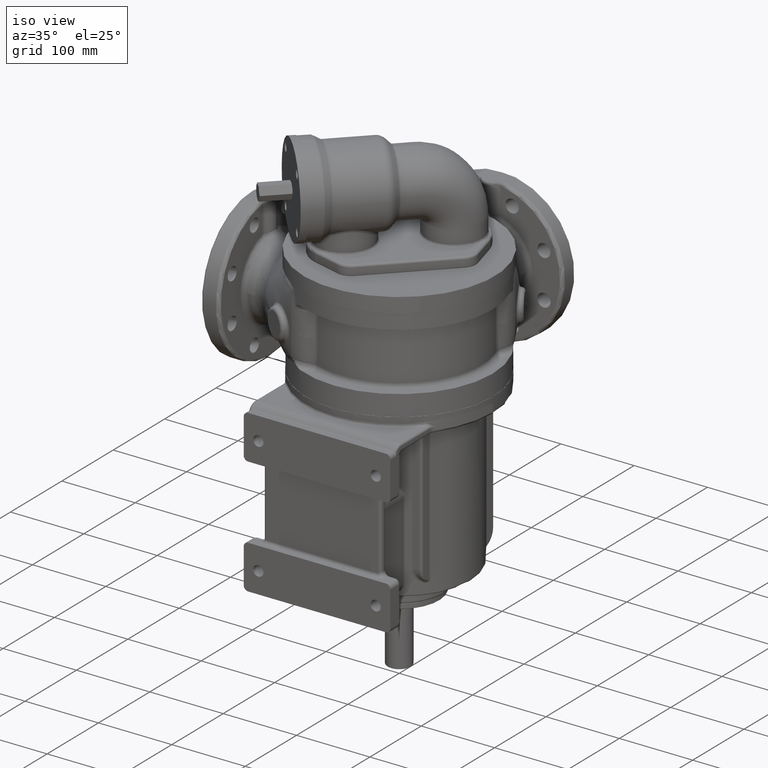
[diagram: clean part render]
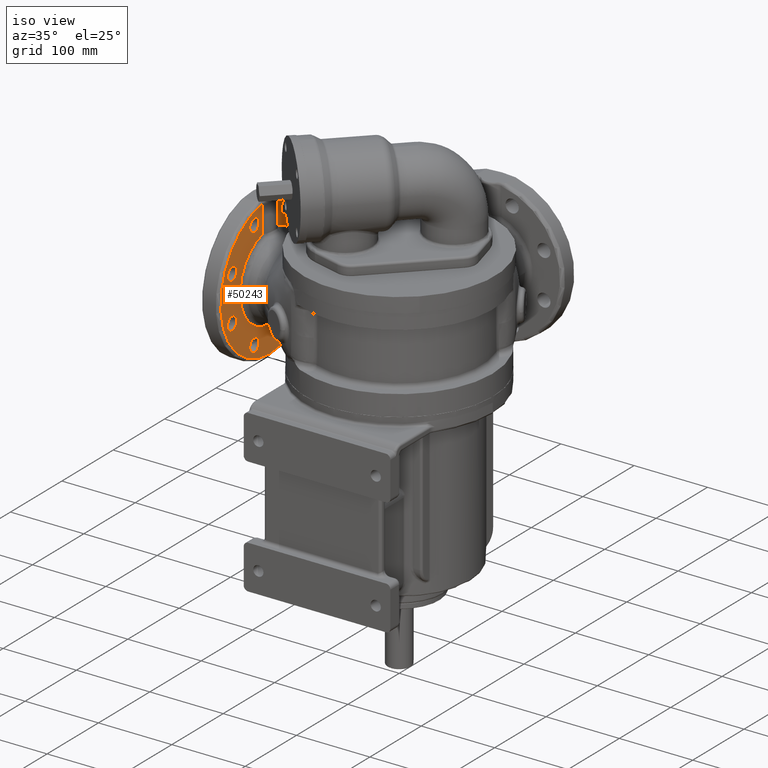
[diagram: same view with one face highlighted and labeled with its STEP entity id]
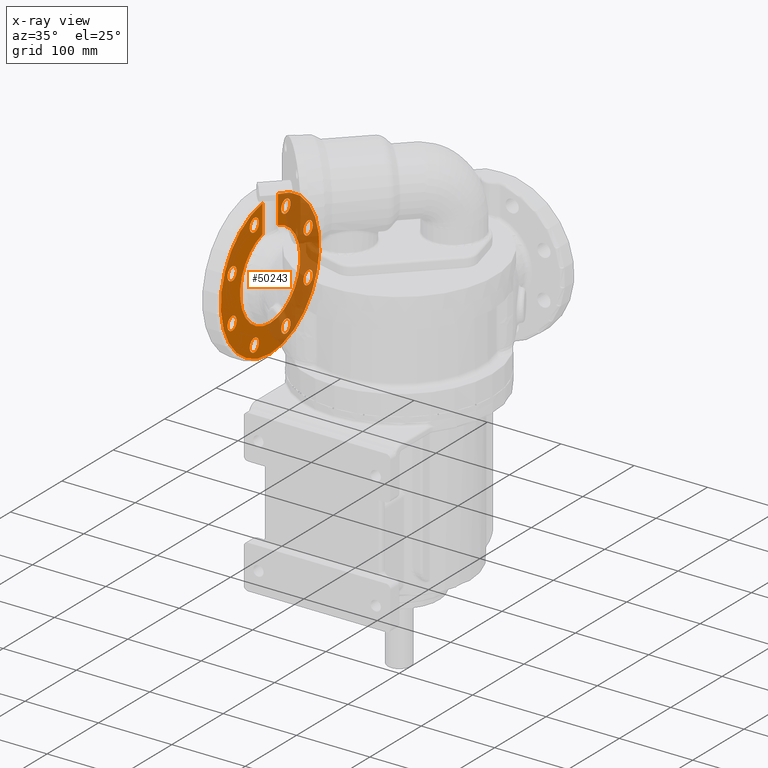
[diagram: x-ray of the same camera — body ghosted, the highlighted face saturated]
A machine part, iso view. The second image highlights one B-rep face of the part: STEP entity #50243.
The next image is the same camera in x-ray: the body ghosted, the highlighted face saturated — about 46% of this face is hidden behind the body in this view.
In plain terms, the highlighted planar face has unit normal (-1, 0, 0).
Its self-contained STEP definition (entity closure, byte-faithful):
#9846=CARTESIAN_POINT('',(-1.76E2,-8.831007501536E-14,7.6E1));
#9847=DIRECTION('',(-1.E0,0.E0,0.E0));
#9848=DIRECTION('',(0.E0,2.598065731885E-1,9.656606777373E-1));
#9849=AXIS2_PLACEMENT_3D('',#9846,#9847,#9848);
#9851=DIRECTION('',(0.E0,1.030152802968E-13,-1.E0));
#9852=VECTOR('',#9851,3.829809062250E1);
#9853=CARTESIAN_POINT('',(-1.76E2,-1.519868415357E1,1.707892398957E2));
#9854=LINE('',#9853,#9852);
#9855=DIRECTION('',(0.E0,1.030152805644E-13,1.E0));
#9856=VECTOR('',#9855,3.829809052299E1);
#9857=CARTESIAN_POINT('',(-1.76E2,1.519868415357E1,1.324911493727E2));
#9858=LINE('',#9857,#9856);
#9859=CARTESIAN_POINT('',(-1.76E2,-3.061467458921E1,2.089637399097E0));
#9860=DIRECTION('',(-1.E0,0.E0,0.E0));
#9861=DIRECTION('',(0.E0,1.E0,0.E0));
#9862=AXIS2_PLACEMENT_3D('',#9859,#9860,#9861);
#9864=CARTESIAN_POINT('',(-1.76E2,-3.061467458921E1,2.089637399097E0));
#9865=DIRECTION('',(-1.E0,0.E0,0.E0));
#9866=DIRECTION('',(0.E0,-1.E0,0.E0));
#9867=AXIS2_PLACEMENT_3D('',#9864,#9865,#9866);
#9869=CARTESIAN_POINT('',(-1.76E2,-7.391036260090E1,4.538532541079E1));
#9870=DIRECTION('',(-1.E0,0.E0,0.E0));
#9871=DIRECTION('',(0.E0,7.071067811866E-1,-7.071067811865E-1));
#9872=AXIS2_PLACEMENT_3D('',#9869,#9870,#9871);
#9874=CARTESIAN_POINT('',(-1.76E2,-7.391036260090E1,4.538532541079E1));
#9875=DIRECTION('',(-1.E0,0.E0,0.E0));
#9876=DIRECTION('',(0.E0,-7.071067811866E-1,7.071067811865E-1));
#9877=AXIS2_PLACEMENT_3D('',#9874,#9875,#9876);
#9879=CARTESIAN_POINT('',(-1.76E2,-7.391036260090E1,1.066146745892E2));
#9880=DIRECTION('',(-1.E0,0.E0,0.E0));
#9881=DIRECTION('',(0.E0,0.E0,-1.E0));
#9882=AXIS2_PLACEMENT_3D('',#9879,#9880,#9881);
#9884=CARTESIAN_POINT('',(-1.76E2,-7.391036260090E1,1.066146745892E2));
#9885=DIRECTION('',(-1.E0,0.E0,0.E0));
#9886=DIRECTION('',(0.E0,0.E0,1.E0));
#9887=AXIS2_PLACEMENT_3D('',#9884,#9885,#9886);
#9889=CARTESIAN_POINT('',(-1.76E2,-3.061467458921E1,1.499103626009E2));
#9890=DIRECTION('',(-1.E0,0.E0,0.E0));
#9891=DIRECTION('',(0.E0,-7.071067811865E-1,-7.071067811866E-1));
#9892=AXIS2_PLACEMENT_3D('',#9889,#9890,#9891);
#9894=CARTESIAN_POINT('',(-1.76E2,-3.061467458921E1,1.499103626009E2));
#9895=DIRECTION('',(-1.E0,0.E0,0.E0));
#9896=DIRECTION('',(0.E0,7.071067811865E-1,7.071067811865E-1));
#9897=AXIS2_PLACEMENT_3D('',#9894,#9895,#9896);
#9899=CARTESIAN_POINT('',(-1.76E2,3.061467458921E1,1.499103626009E2));
#9900=DIRECTION('',(-1.E0,0.E0,0.E0));
#9901=DIRECTION('',(0.E0,-1.E0,0.E0));
#9902=AXIS2_PLACEMENT_3D('',#9899,#9900,#9901);
#9904=CARTESIAN_POINT('',(-1.76E2,3.061467458921E1,1.499103626009E2));
#9905=DIRECTION('',(-1.E0,0.E0,0.E0));
#9906=DIRECTION('',(0.E0,1.E0,0.E0));
#9907=AXIS2_PLACEMENT_3D('',#9904,#9905,#9906);
#9909=CARTESIAN_POINT('',(-1.76E2,7.391036260090E1,1.066146745892E2));
#9910=DIRECTION('',(-1.E0,0.E0,0.E0));
#9911=DIRECTION('',(0.E0,-7.071067811865E-1,7.071067811866E-1));
#9912=AXIS2_PLACEMENT_3D('',#9909,#9910,#9911);
#9914=CARTESIAN_POINT('',(-1.76E2,7.391036260090E1,1.066146745892E2));
#9915=DIRECTION('',(-1.E0,0.E0,0.E0));
#9916=DIRECTION('',(0.E0,7.071067811866E-1,-7.071067811865E-1));
#9917=AXIS2_PLACEMENT_3D('',#9914,#9915,#9916);
#9919=CARTESIAN_POINT('',(-1.76E2,7.391036260090E1,4.538532541079E1));
#9920=DIRECTION('',(-1.E0,0.E0,0.E0));
#9921=DIRECTION('',(0.E0,0.E0,1.E0));
#9922=AXIS2_PLACEMENT_3D('',#9919,#9920,#9921);
#9924=CARTESIAN_POINT('',(-1.76E2,7.391036260090E1,4.538532541079E1));
#9925=DIRECTION('',(-1.E0,0.E0,0.E0));
#9926=DIRECTION('',(0.E0,0.E0,-1.E0));
#9927=AXIS2_PLACEMENT_3D('',#9924,#9925,#9926);
#9929=CARTESIAN_POINT('',(-1.76E2,3.061467458921E1,2.089637399098E0));
#9930=DIRECTION('',(-1.E0,0.E0,0.E0));
#9931=DIRECTION('',(0.E0,7.071067811865E-1,7.071067811866E-1));
#9932=AXIS2_PLACEMENT_3D('',#9929,#9930,#9931);
#9934=CARTESIAN_POINT('',(-1.76E2,3.061467458921E1,2.089637399098E0));
#9935=DIRECTION('',(-1.E0,0.E0,0.E0));
#9936=DIRECTION('',(0.E0,-7.071067811865E-1,-7.071067811866E-1));
#9937=AXIS2_PLACEMENT_3D('',#9934,#9935,#9936);
#9975=CARTESIAN_POINT('',(-1.76E2,-8.831007501536E-14,7.6E1));
#9976=DIRECTION('',(1.E0,0.E0,0.E0));
#9977=DIRECTION('',(0.E0,-1.583196265997E-1,9.873879155800E-1));
#9978=AXIS2_PLACEMENT_3D('',#9975,#9976,#9977);
#10452=CARTESIAN_POINT('',(-1.76E2,1.519868415357E1,1.707892398957E2));
#10653=CARTESIAN_POINT('',(-1.76E2,-1.519868415357E1,1.707892398957E2));
#19638=CARTESIAN_POINT('',(-1.76E2,-2.161467458921E1,2.089637399097E0));
#19639=CARTESIAN_POINT('',(-1.76E2,-3.961467458921E1,2.089637399097E0));
#19640=VERTEX_POINT('',#19638);
#19641=VERTEX_POINT('',#19639);
#19646=CARTESIAN_POINT('',(-1.76E2,-6.754640157022E1,3.902136438011E1));
#19647=CARTESIAN_POINT('',(-1.76E2,-8.027432363158E1,5.174928644147E1));
#19648=VERTEX_POINT('',#19646);
#19649=VERTEX_POINT('',#19647);
#19654=CARTESIAN_POINT('',(-1.76E2,-7.391036260090E1,9.761467458921E1));
#19655=CARTESIAN_POINT('',(-1.76E2,-7.391036260090E1,1.156146745892E2));
#19656=VERTEX_POINT('',#19654);
#19657=VERTEX_POINT('',#19655);
#19662=CARTESIAN_POINT('',(-1.76E2,-3.697863561989E1,1.435464015702E2));
#19663=CARTESIAN_POINT('',(-1.76E2,-2.425071355853E1,1.562743236316E2));
#19664=VERTEX_POINT('',#19662);
#19665=VERTEX_POINT('',#19663);
#19670=CARTESIAN_POINT('',(-1.76E2,2.161467458921E1,1.499103626009E2));
#19671=CARTESIAN_POINT('',(-1.76E2,3.961467458921E1,1.499103626009E2));
#19672=VERTEX_POINT('',#19670);
#19673=VERTEX_POINT('',#19671);
#19682=CARTESIAN_POINT('',(-1.76E2,6.754640157022E1,1.129786356199E2));
#19683=VERTEX_POINT('',#19682);
#19684=CARTESIAN_POINT('',(-1.76E2,8.027432363158E1,1.002507135585E2));
#19685=VERTEX_POINT('',#19684);
#19686=CARTESIAN_POINT('',(-1.76E2,7.391036260090E1,5.438532541079E1));
#19687=CARTESIAN_POINT('',(-1.76E2,7.391036260090E1,3.638532541079E1));
#19688=VERTEX_POINT('',#19686);
#19689=VERTEX_POINT('',#19687);
#19694=CARTESIAN_POINT('',(-1.76E2,3.697863561989E1,8.453598429777E0));
#19695=CARTESIAN_POINT('',(-1.76E2,2.425071355853E1,-4.274323631581E0));
#19696=VERTEX_POINT('',#19694);
#19697=VERTEX_POINT('',#19695);
#20062=CARTESIAN_POINT('',(-1.76E2,1.519868415357E1,1.324911497493E2));
#20063=VERTEX_POINT('',#20062);
#20064=CARTESIAN_POINT('',(-1.76E2,-1.519868415357E1,1.324911497493E2));
#20065=VERTEX_POINT('',#20064);
#20074=VERTEX_POINT('',#10452);
#20078=VERTEX_POINT('',#10653);
#50181=CARTESIAN_POINT('',(-1.76E2,-8.831007501536E-14,7.6E1));
#50182=DIRECTION('',(-1.E0,0.E0,0.E0));
#50183=DIRECTION('',(0.E0,0.E0,1.E0));
#50184=AXIS2_PLACEMENT_3D('',#50181,#50182,#50183);
#50185=PLANE('',#50184);
#50187=ORIENTED_EDGE('',*,*,#50186,.F.);
#50189=ORIENTED_EDGE('',*,*,#50188,.T.);
#50190=ORIENTED_EDGE('',*,*,#50169,.F.);
#50192=ORIENTED_EDGE('',*,*,#50191,.T.);
#50193=EDGE_LOOP('',(#50187,#50189,#50190,#50192));
#50194=FACE_OUTER_BOUND('',#50193,.F.);
#50196=ORIENTED_EDGE('',*,*,#50195,.F.);
#50198=ORIENTED_EDGE('',*,*,#50197,.F.);
#50199=EDGE_LOOP('',(#50196,#50198));
#50200=FACE_BOUND('',#50199,.F.);
#50202=ORIENTED_EDGE('',*,*,#50201,.F.);
#50204=ORIENTED_EDGE('',*,*,#50203,.F.);
#50205=EDGE_LOOP('',(#50202,#50204));
#50206=FACE_BOUND('',#50205,.F.);
#50208=ORIENTED_EDGE('',*,*,#50207,.F.);
#50210=ORIENTED_EDGE('',*,*,#50209,.F.);
#50211=EDGE_LOOP('',(#50208,#50210));
#50212=FACE_BOUND('',#50211,.F.);
#50214=ORIENTED_EDGE('',*,*,#50213,.F.);
#50216=ORIENTED_EDGE('',*,*,#50215,.F.);
#50217=EDGE_LOOP('',(#50214,#50216));
#50218=FACE_BOUND('',#50217,.F.);
#50220=ORIENTED_EDGE('',*,*,#50219,.F.);
#50222=ORIENTED_EDGE('',*,*,#50221,.F.);
#50223=EDGE_LOOP('',(#50220,#50222));
#50224=FACE_BOUND('',#50223,.F.);
#50226=ORIENTED_EDGE('',*,*,#50225,.F.);
#50228=ORIENTED_EDGE('',*,*,#50227,.F.);
#50229=EDGE_LOOP('',(#50226,#50228));
#50230=FACE_BOUND('',#50229,.F.);
#50232=ORIENTED_EDGE('',*,*,#50231,.F.);
#50234=ORIENTED_EDGE('',*,*,#50233,.F.);
#50235=EDGE_LOOP('',(#50232,#50234));
#50236=FACE_BOUND('',#50235,.F.);
#50238=ORIENTED_EDGE('',*,*,#50237,.F.);
#50240=ORIENTED_EDGE('',*,*,#50239,.F.);
#50241=EDGE_LOOP('',(#50238,#50240));
#50242=FACE_BOUND('',#50241,.F.);
#50243=ADVANCED_FACE('',(#50194,#50200,#50206,#50212,#50218,#50224,#50230,
#50236,#50242),#50185,.F.);
#9850=CIRCLE('',#9849,5.849999999995E1);
#9863=CIRCLE('',#9862,9.E0);
#9868=CIRCLE('',#9867,9.E0);
#9873=CIRCLE('',#9872,9.E0);
#9878=CIRCLE('',#9877,9.E0);
#9883=CIRCLE('',#9882,9.E0);
#9888=CIRCLE('',#9887,9.E0);
#9893=CIRCLE('',#9892,9.E0);
#9898=CIRCLE('',#9897,9.E0);
#9903=CIRCLE('',#9902,9.E0);
#9908=CIRCLE('',#9907,9.E0);
#9913=CIRCLE('',#9912,9.E0);
#9918=CIRCLE('',#9917,9.E0);
#9923=CIRCLE('',#9922,9.E0);
#9928=CIRCLE('',#9927,9.E0);
#9933=CIRCLE('',#9932,9.E0);
#9938=CIRCLE('',#9937,9.E0);
#9979=CIRCLE('',#9978,9.6E1);
#50169=EDGE_CURVE('',#20063,#20065,#9850,.T.);
#50186=EDGE_CURVE('',#20078,#20074,#9979,.T.);
#50188=EDGE_CURVE('',#20078,#20065,#9854,.T.);
#50191=EDGE_CURVE('',#20063,#20074,#9858,.T.);
#50195=EDGE_CURVE('',#19640,#19641,#9863,.T.);
#50197=EDGE_CURVE('',#19641,#19640,#9868,.T.);
#50201=EDGE_CURVE('',#19648,#19649,#9873,.T.);
#50203=EDGE_CURVE('',#19649,#19648,#9878,.T.);
#50207=EDGE_CURVE('',#19656,#19657,#9883,.T.);
#50209=EDGE_CURVE('',#19657,#19656,#9888,.T.);
#50213=EDGE_CURVE('',#19664,#19665,#9893,.T.);
#50215=EDGE_CURVE('',#19665,#19664,#9898,.T.);
#50219=EDGE_CURVE('',#19672,#19673,#9903,.T.);
#50221=EDGE_CURVE('',#19673,#19672,#9908,.T.);
#50225=EDGE_CURVE('',#19683,#19685,#9913,.T.);
#50227=EDGE_CURVE('',#19685,#19683,#9918,.T.);
#50231=EDGE_CURVE('',#19688,#19689,#9923,.T.);
#50233=EDGE_CURVE('',#19689,#19688,#9928,.T.);
#50237=EDGE_CURVE('',#19696,#19697,#9933,.T.);
#50239=EDGE_CURVE('',#19697,#19696,#9938,.T.);